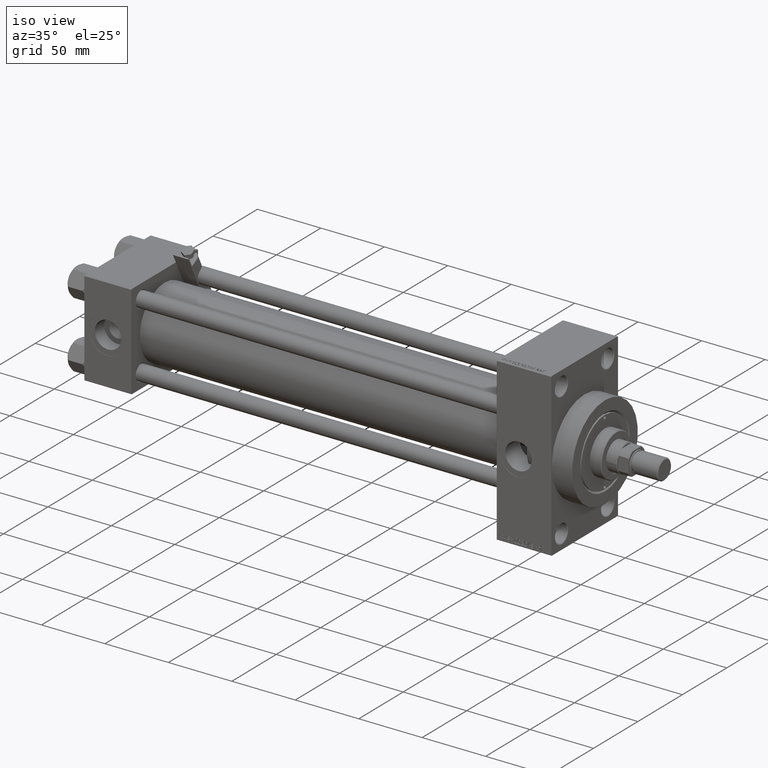
[diagram: clean part render]
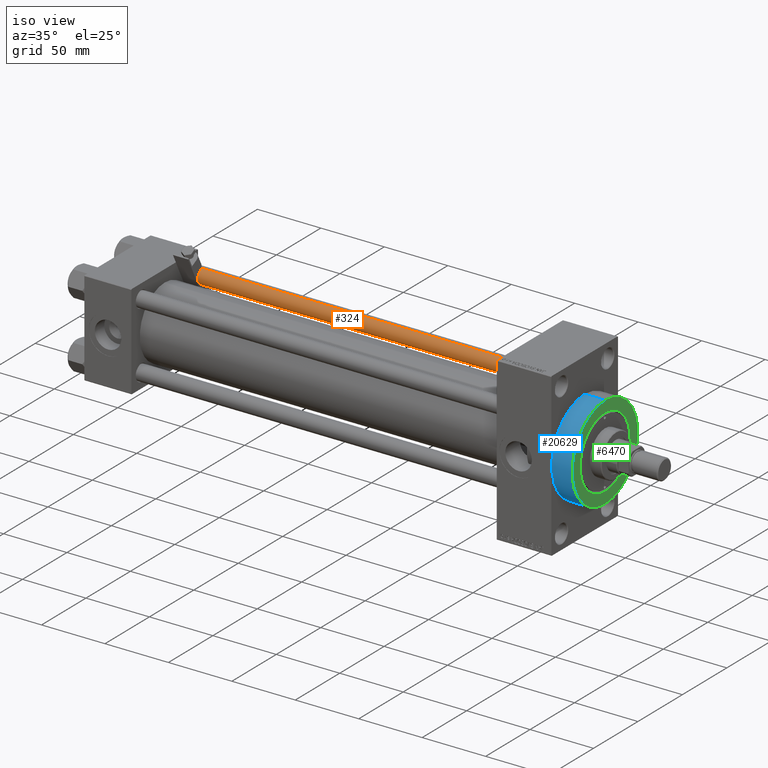
[diagram: same view with three faces highlighted in distinct colors, each labeled with its STEP entity id]
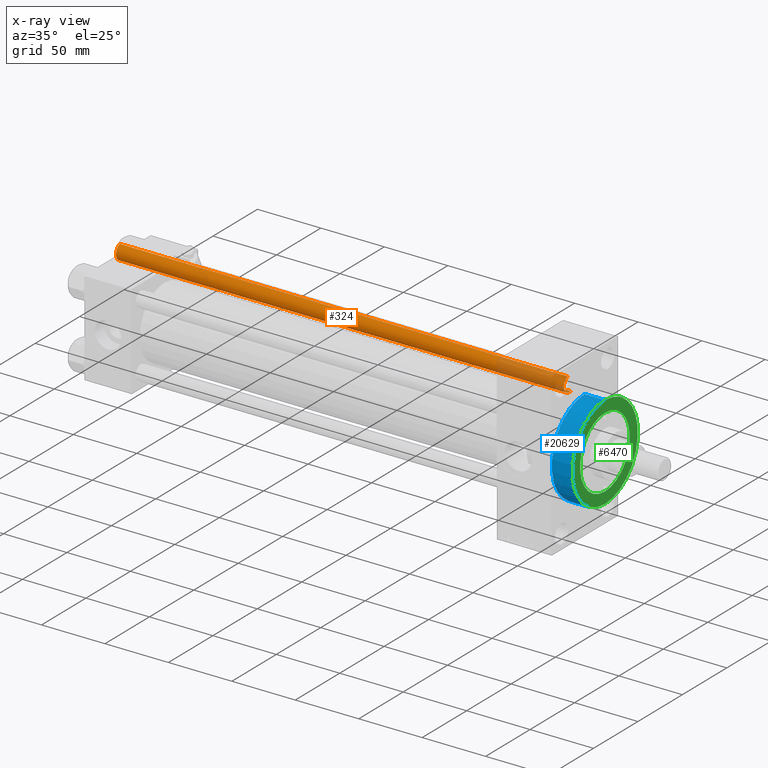
[diagram: x-ray of the same camera — body ghosted, the three highlighted faces saturated]
A machine part, iso view with three faces highlighted in distinct colors.
The next image is the same camera in x-ray (body ghosted, the three faces saturated) — at least one of them is partly hidden behind the body in this view.
Their STEP definitions:

[orange] entity #324 — the highlighted cylindrical surface (edge-blend (fillet) strip) has radius 6 mm, axis along (-1, -0, 0).
#38 = VECTOR ( 'NONE', #30073, 1000.000000000000000 ) ;
#324 = ADVANCED_FACE ( 'NONE', ( #20445 ), #36435, .T. ) ;
#1281 = VERTEX_POINT ( 'NONE', #50637 ) ;
#1511 = AXIS2_PLACEMENT_3D ( 'NONE', #24073, #32833, #40567 ) ;
#1859 = CARTESIAN_POINT ( 'NONE',  ( -6.000000000000000888, 0.000000000000000000, 0.5000000000000559552 ) ) ;
#3008 = CIRCLE ( 'NONE', #22751, 6.000000000000000888 ) ;
#4679 = CIRCLE ( 'NONE', #11284, 6.000000000000000888 ) ;
#6380 = CARTESIAN_POINT ( 'NONE',  ( 0.000000000000000000, 0.000000000000000000, 353.5000000000000000 ) ) ;
#7407 = CARTESIAN_POINT ( 'NONE',  ( 6.000000000000000888, 7.347880794884120722E-16, 0.5000000000000559552 ) ) ;
#7541 = CARTESIAN_POINT ( 'NONE',  ( -6.000000000000000888, 0.000000000000000000, 353.5000000000000000 ) ) ;
#9308 = LINE ( 'NONE', #17320, #26511 ) ;
#11284 = AXIS2_PLACEMENT_3D ( 'NONE', #6380, #22132, #34003 ) ;
#12037 = CARTESIAN_POINT ( 'NONE',  ( 0.000000000000000000, 0.000000000000000000, 0.5000000000000559552 ) ) ;
#13214 = VERTEX_POINT ( 'NONE', #7407 ) ;
#13993 = EDGE_CURVE ( 'NONE', #24059, #13214, #3008, .T. ) ;
#15274 = ORIENTED_EDGE ( 'NONE', *, *, #29261, .T. ) ;
#17320 = CARTESIAN_POINT ( 'NONE',  ( -6.000000000000000888, 0.000000000000000000, 354.0000000000000000 ) ) ;
#20445 = FACE_OUTER_BOUND ( 'NONE', #27366, .T. ) ;
#22132 = DIRECTION ( 'NONE',  ( 0.000000000000000000, 0.000000000000000000, -1.000000000000000000 ) ) ;
#22751 = AXIS2_PLACEMENT_3D ( 'NONE', #12037, #39385, #27783 ) ;
#24059 = VERTEX_POINT ( 'NONE', #1859 ) ;
#24073 = CARTESIAN_POINT ( 'NONE',  ( 0.000000000000000000, 0.000000000000000000, 354.0000000000000000 ) ) ;
#26511 = VECTOR ( 'NONE', #33306, 1000.000000000000000 ) ;
#27322 = EDGE_CURVE ( 'NONE', #1281, #13214, #49656, .T. ) ;
#27366 = EDGE_LOOP ( 'NONE', ( #36985, #29061, #15274, #45134 ) ) ;
#27783 = DIRECTION ( 'NONE',  ( 1.000000000000000000, 0.000000000000000000, 0.000000000000000000 ) ) ;
#29061 = ORIENTED_EDGE ( 'NONE', *, *, #47005, .T. ) ;
#29261 = EDGE_CURVE ( 'NONE', #39156, #24059, #9308, .T. ) ;
#30073 = DIRECTION ( 'NONE',  ( -0.000000000000000000, -0.000000000000000000, -1.000000000000000000 ) ) ;
#32833 = DIRECTION ( 'NONE',  ( -0.000000000000000000, -0.000000000000000000, -1.000000000000000000 ) ) ;
#33306 = DIRECTION ( 'NONE',  ( -0.000000000000000000, -0.000000000000000000, -1.000000000000000000 ) ) ;
#34003 = DIRECTION ( 'NONE',  ( 1.000000000000000000, 0.000000000000000000, 0.000000000000000000 ) ) ;
#36435 = CYLINDRICAL_SURFACE ( 'NONE', #1511, 6.000000000000000888 ) ;
#36985 = ORIENTED_EDGE ( 'NONE', *, *, #27322, .F. ) ;
#39156 = VERTEX_POINT ( 'NONE', #7541 ) ;
#39385 = DIRECTION ( 'NONE',  ( -0.000000000000000000, -0.000000000000000000, 1.000000000000000000 ) ) ;
#40567 = DIRECTION ( 'NONE',  ( -1.000000000000000000, 0.000000000000000000, 0.000000000000000000 ) ) ;
#41927 = CARTESIAN_POINT ( 'NONE',  ( 6.000000000000000888, 7.347880794884120722E-16, 354.0000000000000000 ) ) ;
#45134 = ORIENTED_EDGE ( 'NONE', *, *, #13993, .T. ) ;
#47005 = EDGE_CURVE ( 'NONE', #1281, #39156, #4679, .T. ) ;
#49656 = LINE ( 'NONE', #41927, #38 ) ;
#50637 = CARTESIAN_POINT ( 'NONE',  ( 6.000000000000000888, 7.347880794884120722E-16, 353.5000000000000000 ) ) ;

[blue] entity #20629 — the highlighted cylindrical surface (partial cylindrical patch) has radius 37 mm, axis along (-1, -0, -0).
#221 = DIRECTION ( 'NONE',  ( 0.000000000000000000, 0.000000000000000000, -1.000000000000000000 ) ) ;
#605 = DIRECTION ( 'NONE',  ( 0.000000000000000000, 0.000000000000000000, -1.000000000000000000 ) ) ;
#920 = VERTEX_POINT ( 'NONE', #50454 ) ;
#3951 = EDGE_CURVE ( 'NONE', #920, #38017, #5781, .T. ) ;
#5127 = DIRECTION ( 'NONE',  ( -1.000000000000000000, -0.000000000000000000, -0.000000000000000000 ) ) ;
#5167 = DIRECTION ( 'NONE',  ( -1.000000000000000000, -0.000000000000000000, -0.000000000000000000 ) ) ;
#5411 = CARTESIAN_POINT ( 'NONE',  ( 383.9999999999999432, 4.531193156845206793E-15, -37.00000000000000000 ) ) ;
#5781 = CIRCLE ( 'NONE', #39531, 37.00000000000000000 ) ;
#6268 = ORIENTED_EDGE ( 'NONE', *, *, #3951, .F. ) ;
#9750 = LINE ( 'NONE', #37362, #9799 ) ;
#9799 = VECTOR ( 'NONE', #5127, 1000.000000000000000 ) ;
#13265 = CARTESIAN_POINT ( 'NONE',  ( 383.9999999999999432, 4.531193156845206793E-15, -37.00000000000000000 ) ) ;
#15240 = CYLINDRICAL_SURFACE ( 'NONE', #47721, 37.00000000000000000 ) ;
#16512 = EDGE_CURVE ( 'NONE', #40283, #20561, #48354, .T. ) ;
#18127 = DIRECTION ( 'NONE',  ( 0.000000000000000000, 0.000000000000000000, 1.000000000000000000 ) ) ;
#19475 = DIRECTION ( 'NONE',  ( 1.000000000000000000, 0.000000000000000000, 0.000000000000000000 ) ) ;
#20561 = VERTEX_POINT ( 'NONE', #29225 ) ;
#20629 = ADVANCED_FACE ( 'NONE', ( #46458 ), #15240, .T. ) ;
#21382 = ORIENTED_EDGE ( 'NONE', *, *, #50389, .T. ) ;
#26143 = AXIS2_PLACEMENT_3D ( 'NONE', #27466, #19475, #605 ) ;
#27466 = CARTESIAN_POINT ( 'NONE',  ( 367.9999999999999432, 0.000000000000000000, 0.000000000000000000 ) ) ;
#28091 = CARTESIAN_POINT ( 'NONE',  ( 383.9999999999999432, 0.000000000000000000, 0.000000000000000000 ) ) ;
#29225 = CARTESIAN_POINT ( 'NONE',  ( 367.9999999999999432, 4.531193156845206793E-15, -37.00000000000000000 ) ) ;
#32230 = CARTESIAN_POINT ( 'NONE',  ( 367.9999999999999432, 0.000000000000000000, 37.00000000000000000 ) ) ;
#32423 = ORIENTED_EDGE ( 'NONE', *, *, #16512, .T. ) ;
#32519 = LINE ( 'NONE', #5411, #38420 ) ;
#35024 = EDGE_LOOP ( 'NONE', ( #47456, #6268, #21382, #32423 ) ) ;
#35563 = DIRECTION ( 'NONE',  ( 1.000000000000000000, 0.000000000000000000, 0.000000000000000000 ) ) ;
#37362 = CARTESIAN_POINT ( 'NONE',  ( 383.9999999999999432, 0.000000000000000000, 37.00000000000000000 ) ) ;
#38017 = VERTEX_POINT ( 'NONE', #13265 ) ;
#38420 = VECTOR ( 'NONE', #5167, 1000.000000000000000 ) ;
#38468 = CARTESIAN_POINT ( 'NONE',  ( 383.9999999999999432, 0.000000000000000000, 0.000000000000000000 ) ) ;
#38723 = DIRECTION ( 'NONE',  ( -1.000000000000000000, -0.000000000000000000, -0.000000000000000000 ) ) ;
#39531 = AXIS2_PLACEMENT_3D ( 'NONE', #28091, #35563, #221 ) ;
#40283 = VERTEX_POINT ( 'NONE', #32230 ) ;
#46020 = EDGE_CURVE ( 'NONE', #38017, #20561, #32519, .T. ) ;
#46458 = FACE_OUTER_BOUND ( 'NONE', #35024, .T. ) ;
#47456 = ORIENTED_EDGE ( 'NONE', *, *, #46020, .F. ) ;
#47721 = AXIS2_PLACEMENT_3D ( 'NONE', #38468, #38723, #18127 ) ;
#48354 = CIRCLE ( 'NONE', #26143, 37.00000000000000000 ) ;
#50389 = EDGE_CURVE ( 'NONE', #920, #40283, #9750, .T. ) ;
#50454 = CARTESIAN_POINT ( 'NONE',  ( 383.9999999999999432, 0.000000000000000000, 37.00000000000000000 ) ) ;

[green] entity #6470 — the highlighted planar face has unit normal (1, 0, 0).
#221 = DIRECTION ( 'NONE',  ( 0.000000000000000000, 0.000000000000000000, -1.000000000000000000 ) ) ;
#760 = ORIENTED_EDGE ( 'NONE', *, *, #40484, .T. ) ;
#920 = VERTEX_POINT ( 'NONE', #50454 ) ;
#1148 = FACE_BOUND ( 'NONE', #1925, .T. ) ;
#1925 = EDGE_LOOP ( 'NONE', ( #23240, #8516 ) ) ;
#3951 = EDGE_CURVE ( 'NONE', #920, #38017, #5781, .T. ) ;
#4078 = AXIS2_PLACEMENT_3D ( 'NONE', #4759, #20497, #35964 ) ;
#4525 = CARTESIAN_POINT ( 'NONE',  ( 383.9999999999999432, 0.000000000000000000, -28.00000000000008171 ) ) ;
#4594 = DIRECTION ( 'NONE',  ( 0.000000000000000000, 0.000000000000000000, -1.000000000000000000 ) ) ;
#4759 = CARTESIAN_POINT ( 'NONE',  ( 383.9999999999999432, 0.000000000000000000, 0.000000000000000000 ) ) ;
#5781 = CIRCLE ( 'NONE', #39531, 37.00000000000000000 ) ;
#6093 = AXIS2_PLACEMENT_3D ( 'NONE', #43575, #40201, #20614 ) ;
#6470 = ADVANCED_FACE ( 'NONE', ( #1148, #12504 ), #43474, .T. ) ;
#8516 = ORIENTED_EDGE ( 'NONE', *, *, #40322, .T. ) ;
#9038 = DIRECTION ( 'NONE',  ( 0.000000000000000000, 0.000000000000000000, -1.000000000000000000 ) ) ;
#10071 = DIRECTION ( 'NONE',  ( 1.000000000000000000, 0.000000000000000000, 0.000000000000000000 ) ) ;
#12504 = FACE_OUTER_BOUND ( 'NONE', #17734, .T. ) ;
#13249 = CARTESIAN_POINT ( 'NONE',  ( 383.9999999999999432, 3.429011037612599137E-15, 28.00000000000008171 ) ) ;
#13265 = CARTESIAN_POINT ( 'NONE',  ( 383.9999999999999432, 4.531193156845206793E-15, -37.00000000000000000 ) ) ;
#13751 = AXIS2_PLACEMENT_3D ( 'NONE', #44584, #40707, #4594 ) ;
#16212 = CIRCLE ( 'NONE', #13751, 28.00000000000008171 ) ;
#17734 = EDGE_LOOP ( 'NONE', ( #30848, #760 ) ) ;
#20497 = DIRECTION ( 'NONE',  ( 1.000000000000000000, 0.000000000000000000, 0.000000000000000000 ) ) ;
#20614 = DIRECTION ( 'NONE',  ( 0.000000000000000000, 0.000000000000000000, -1.000000000000000000 ) ) ;
#21869 = CIRCLE ( 'NONE', #23439, 37.00000000000000000 ) ;
#23240 = ORIENTED_EDGE ( 'NONE', *, *, #46943, .T. ) ;
#23439 = AXIS2_PLACEMENT_3D ( 'NONE', #37404, #10071, #9038 ) ;
#28091 = CARTESIAN_POINT ( 'NONE',  ( 383.9999999999999432, 0.000000000000000000, 0.000000000000000000 ) ) ;
#30848 = ORIENTED_EDGE ( 'NONE', *, *, #3951, .T. ) ;
#30926 = CIRCLE ( 'NONE', #6093, 28.00000000000008171 ) ;
#31646 = VERTEX_POINT ( 'NONE', #13249 ) ;
#35563 = DIRECTION ( 'NONE',  ( 1.000000000000000000, 0.000000000000000000, 0.000000000000000000 ) ) ;
#35964 = DIRECTION ( 'NONE',  ( 0.000000000000000000, 0.000000000000000000, -1.000000000000000000 ) ) ;
#37404 = CARTESIAN_POINT ( 'NONE',  ( 383.9999999999999432, 0.000000000000000000, 0.000000000000000000 ) ) ;
#38017 = VERTEX_POINT ( 'NONE', #13265 ) ;
#39531 = AXIS2_PLACEMENT_3D ( 'NONE', #28091, #35563, #221 ) ;
#40201 = DIRECTION ( 'NONE',  ( -1.000000000000000000, -0.000000000000000000, -0.000000000000000000 ) ) ;
#40322 = EDGE_CURVE ( 'NONE', #31646, #43571, #30926, .T. ) ;
#40484 = EDGE_CURVE ( 'NONE', #38017, #920, #21869, .T. ) ;
#40707 = DIRECTION ( 'NONE',  ( -1.000000000000000000, -0.000000000000000000, -0.000000000000000000 ) ) ;
#43474 = PLANE ( 'NONE',  #4078 ) ;
#43571 = VERTEX_POINT ( 'NONE', #4525 ) ;
#43575 = CARTESIAN_POINT ( 'NONE',  ( 383.9999999999999432, 0.000000000000000000, 0.000000000000000000 ) ) ;
#44584 = CARTESIAN_POINT ( 'NONE',  ( 383.9999999999999432, 0.000000000000000000, 0.000000000000000000 ) ) ;
#46943 = EDGE_CURVE ( 'NONE', #43571, #31646, #16212, .T. ) ;
#50454 = CARTESIAN_POINT ( 'NONE',  ( 383.9999999999999432, 0.000000000000000000, 37.00000000000000000 ) ) ;